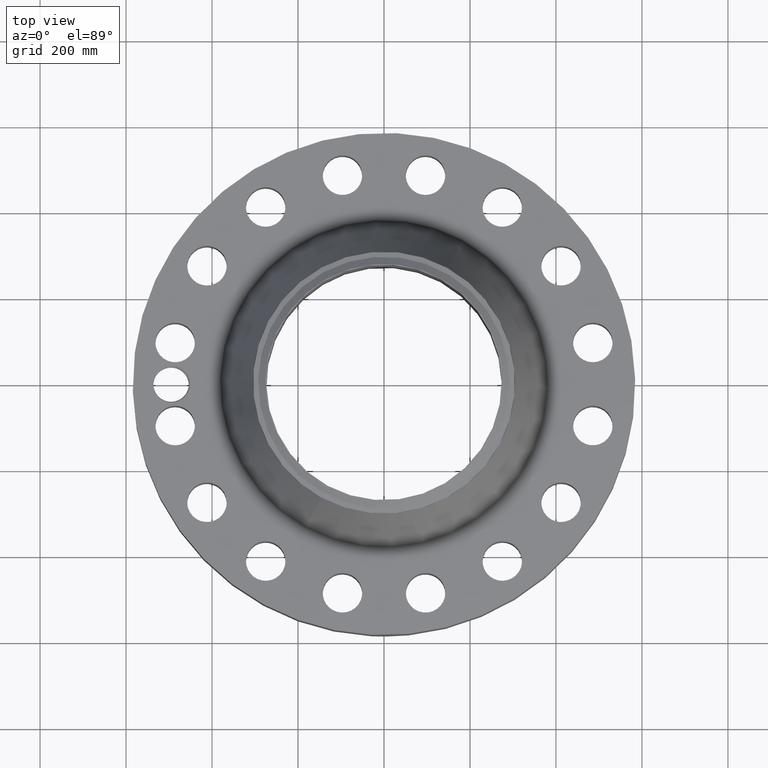
[diagram: clean part render]
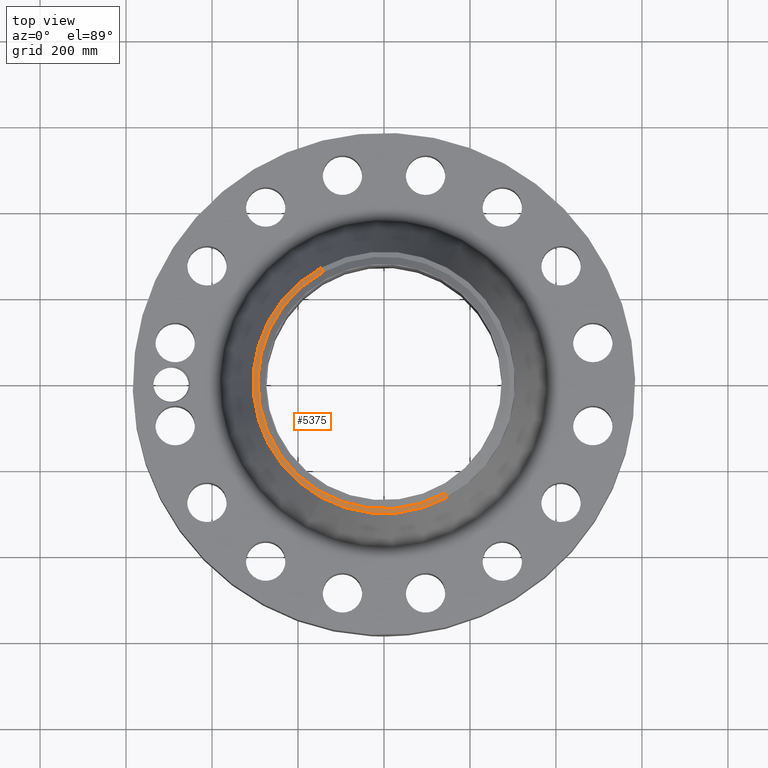
[diagram: same view with one face highlighted and labeled with its STEP entity id]
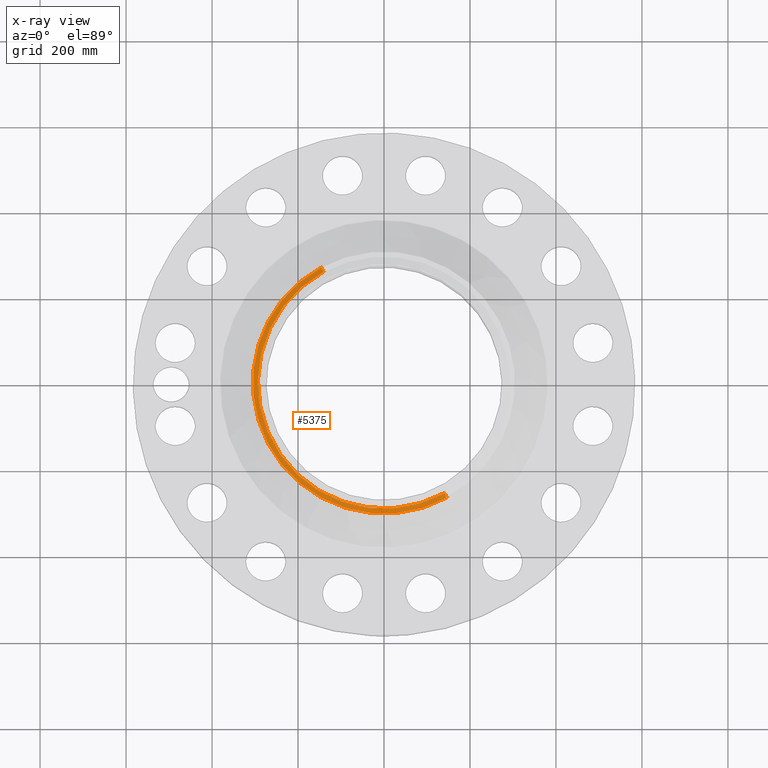
[diagram: x-ray of the same camera — body ghosted, the highlighted face saturated]
A machine part, top view. The second image highlights one B-rep face of the part: STEP entity #5375.
The next image is the same camera in x-ray: the body ghosted, the highlighted face saturated — about 0% of this face is hidden behind the body in this view.
In plain terms, the highlighted conical surface has half-angle 80 deg.
Its self-contained STEP definition (entity closure, byte-faithful):
#3918=AXIS2_PLACEMENT_3D('Circle Axis2P3D',#3916,#3917,$) ;
#3931=AXIS2_PLACEMENT_3D('Circle Axis2P3D',#3929,#3930,$) ;
#4719=AXIS2_PLACEMENT_3D('Circle Axis2P3D',#4717,#4718,$) ;
#5348=AXIS2_PLACEMENT_3D('Cone Axis2P3D',#5345,#5346,#5347) ;
#3899=CARTESIAN_POINT('Vertex',(-5.75310646327,-10.5309907427,15.6533902388)) ;
#3913=CARTESIAN_POINT('Vertex',(5.75310646327,-10.5309907427,15.6533902388)) ;
#3916=CARTESIAN_POINT('Axis2P3D Location',(0.,0.,15.6533902388)) ;
#3929=CARTESIAN_POINT('Axis2P3D Location',(0.,0.,15.6533902388)) ;
#3933=CARTESIAN_POINT('Vertex',(-5.75310646327,10.5309907427,15.6533902388)) ;
#4714=CARTESIAN_POINT('Vertex',(-5.54095769476,10.1426550268,15.7314160193)) ;
#4717=CARTESIAN_POINT('Axis2P3D Location',(0.,0.,15.7314160193)) ;
#4721=CARTESIAN_POINT('Vertex',(5.54095769476,-10.1426550268,15.7314160193)) ;
#5345=CARTESIAN_POINT('Axis2P3D Location',(0.,0.,15.7314160193)) ;
#5350=CARTESIAN_POINT('Line Origine',(-5.64703207902,10.3368228848,15.6924031291)) ;
#5355=CARTESIAN_POINT('Line Origine',(5.64703207902,-10.3368228848,15.6924031291)) ;
#3917=DIRECTION('Axis2P3D Direction',(0.,0.,-0.0393700787402)) ;
#3930=DIRECTION('Axis2P3D Direction',(0.,0.,-0.0393700787402)) ;
#4718=DIRECTION('Axis2P3D Direction',(0.,0.,0.0393700787402)) ;
#5346=DIRECTION('Axis2P3D Direction',(-0.,-0.,-0.0393700787402)) ;
#5347=DIRECTION('Axis2P3D XDirection',(0.0188750212049,-0.0345504945626,0.)) ;
#5351=DIRECTION('Vector Direction',(-0.0185882672208,0.0340255949157,-0.00683654242783)) ;
#5356=DIRECTION('Vector Direction',(0.0185882672208,-0.0340255949157,-0.00683654242783)) ;
#5352=VECTOR('Line Direction',#5351,0.0393700787402) ;
#5357=VECTOR('Line Direction',#5356,0.0393700787402) ;
#5369=ORIENTED_EDGE('',*,*,#5359,.F.) ;
#5370=ORIENTED_EDGE('',*,*,#4723,.F.) ;
#5371=ORIENTED_EDGE('',*,*,#5354,.T.) ;
#5372=ORIENTED_EDGE('',*,*,#3935,.T.) ;
#5373=ORIENTED_EDGE('',*,*,#3920,.F.) ;
#5375=ADVANCED_FACE('PartBody',(#5374),#5349,.T.) ;
#3919=CIRCLE('generated circle',#3918,12.) ;
#3932=CIRCLE('generated circle',#3931,12.) ;
#4720=CIRCLE('generated circle',#4719,11.55749381) ;
#5349=CONICAL_SURFACE('Cone',#5348,11.55749381,1.3962634016) ;
#3920=EDGE_CURVE('',#3914,#3900,#3919,.T.) ;
#3935=EDGE_CURVE('',#3934,#3900,#3932,.F.) ;
#4723=EDGE_CURVE('',#4715,#4722,#4720,.T.) ;
#5354=EDGE_CURVE('',#4715,#3934,#5353,.T.) ;
#5359=EDGE_CURVE('',#4722,#3914,#5358,.T.) ;
#5368=EDGE_LOOP('',(#5369,#5370,#5371,#5372,#5373)) ;
#5374=FACE_OUTER_BOUND('',#5368,.T.) ;
#5353=LINE('Line',#5350,#5352) ;
#5358=LINE('Line',#5355,#5357) ;
#3900=VERTEX_POINT('',#3899) ;
#3914=VERTEX_POINT('',#3913) ;
#3934=VERTEX_POINT('',#3933) ;
#4715=VERTEX_POINT('',#4714) ;
#4722=VERTEX_POINT('',#4721) ;